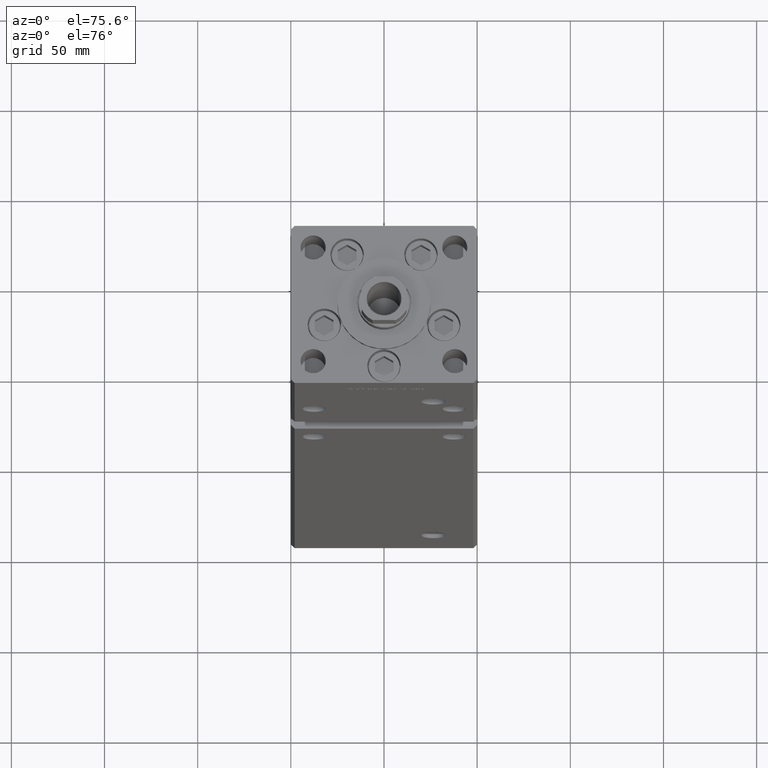
[diagram: clean part render]
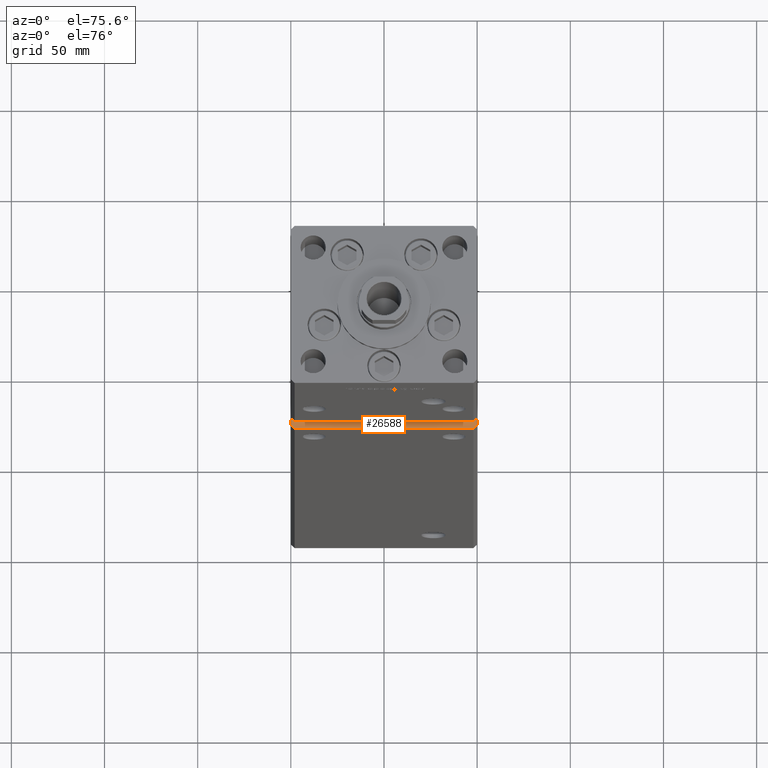
[diagram: same view with one face highlighted and labeled with its STEP entity id]
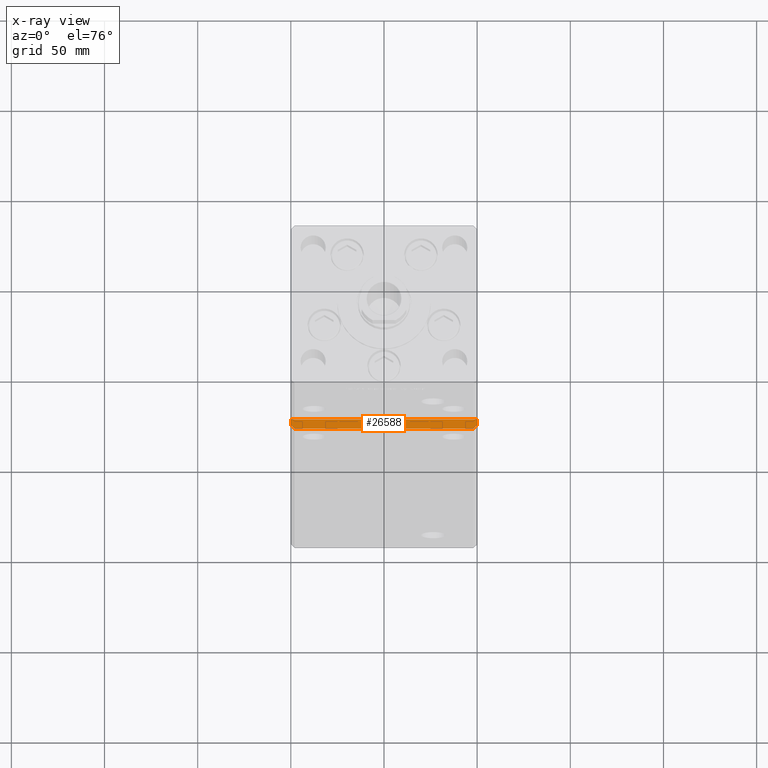
[diagram: x-ray of the same camera — body ghosted, the highlighted face saturated]
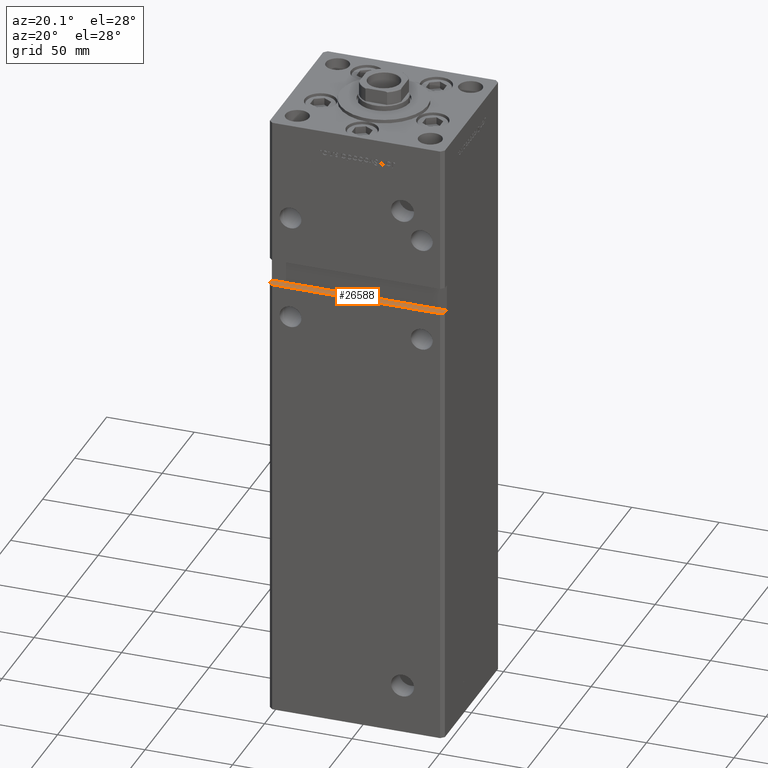
[diagram: same view with one face highlighted and labeled with its STEP entity id]
A machine part, auxiliary view. The second image highlights one B-rep face of the part: STEP entity #26588.
The next image is the same camera in x-ray: the body ghosted, the highlighted face saturated — about 0% of this face is hidden behind the body in this view.
A second angle (auxiliary view) of the same face is appended — the face is thin or edge-on in the first view.
In plain terms, the highlighted planar face has unit normal (0, 0, -1).
Its self-contained STEP definition (entity closure, byte-faithful):
#1787 = VERTEX_POINT ( 'NONE', #18893 ) ;
#1928 = PLANE ( 'NONE',  #9101 ) ;
#2064 = VECTOR ( 'NONE', #29372, 1000.000000000000000 ) ;
#3304 = VERTEX_POINT ( 'NONE', #7158 ) ;
#3307 = DIRECTION ( 'NONE',  ( 0.7071067811865474617, 0.7071067811865474617, 0.000000000000000000 ) ) ;
#3412 = CARTESIAN_POINT ( 'NONE',  ( 49.99999999999998579, -38.49999999999999289, 239.0000000000000000 ) ) ;
#3639 = EDGE_LOOP ( 'NONE', ( #10403, #37289, #52827, #15209, #13022, #16067 ) ) ;
#4767 = VERTEX_POINT ( 'NONE', #3412 ) ;
#6840 = DIRECTION ( 'NONE',  ( -0.7071067811865474617, 0.7071067811865474617, 0.000000000000000000 ) ) ;
#7158 = CARTESIAN_POINT ( 'NONE',  ( 49.99999999999998579, -41.49999999999999289, 239.0000000000000000 ) ) ;
#7895 = LINE ( 'NONE', #24299, #23718 ) ;
#8907 = LINE ( 'NONE', #34153, #48264 ) ;
#9101 = AXIS2_PLACEMENT_3D ( 'NONE', #43566, #31229, #10540 ) ;
#10382 = EDGE_CURVE ( 'NONE', #4767, #3304, #49875, .T. ) ;
#10403 = ORIENTED_EDGE ( 'NONE', *, *, #36490, .T. ) ;
#10540 = DIRECTION ( 'NONE',  ( -1.000000000000000000, 0.000000000000000000, -0.000000000000000000 ) ) ;
#11912 = CARTESIAN_POINT ( 'NONE',  ( 49.99999999999998579, -41.49999999999999289, 239.0000000000000000 ) ) ;
#12961 = CARTESIAN_POINT ( 'NONE',  ( -49.99999999999998579, -38.50000000000000000, 239.0000000000000000 ) ) ;
#13022 = ORIENTED_EDGE ( 'NONE', *, *, #21938, .T. ) ;
#14921 = LINE ( 'NONE', #19490, #47446 ) ;
#15209 = ORIENTED_EDGE ( 'NONE', *, *, #49684, .F. ) ;
#16067 = ORIENTED_EDGE ( 'NONE', *, *, #41146, .F. ) ;
#18893 = CARTESIAN_POINT ( 'NONE',  ( -47.99999999999998579, -43.50000000000000000, 239.0000000000000000 ) ) ;
#19490 = CARTESIAN_POINT ( 'NONE',  ( -49.99999999999998579, -41.49999999999999289, 239.0000000000000000 ) ) ;
#20262 = DIRECTION ( 'NONE',  ( 1.000000000000000000, 0.000000000000000000, 0.000000000000000000 ) ) ;
#21938 = EDGE_CURVE ( 'NONE', #48196, #51073, #42242, .T. ) ;
#23718 = VECTOR ( 'NONE', #20262, 1000.000000000000000 ) ;
#23785 = CARTESIAN_POINT ( 'NONE',  ( 47.99999999999998579, -43.50000000000000000, 239.0000000000000000 ) ) ;
#24299 = CARTESIAN_POINT ( 'NONE',  ( -49.99999999999998579, -38.50000000000000000, 239.0000000000000000 ) ) ;
#25026 = VECTOR ( 'NONE', #45838, 1000.000000000000000 ) ;
#25662 = FACE_OUTER_BOUND ( 'NONE', #3639, .T. ) ;
#26588 = ADVANCED_FACE ( 'NONE', ( #25662 ), #1928, .F. ) ;
#28780 = EDGE_CURVE ( 'NONE', #41371, #3304, #32336, .T. ) ;
#29372 = DIRECTION ( 'NONE',  ( -0.000000000000000000, -1.000000000000000000, -0.000000000000000000 ) ) ;
#29458 = CARTESIAN_POINT ( 'NONE',  ( 49.99999999999998579, -38.50000000000000000, 239.0000000000000000 ) ) ;
#31229 = DIRECTION ( 'NONE',  ( 0.000000000000000000, 0.000000000000000000, -1.000000000000000000 ) ) ;
#32336 = LINE ( 'NONE', #11912, #53052 ) ;
#33352 = DIRECTION ( 'NONE',  ( 1.000000000000000000, 0.000000000000000000, 0.000000000000000000 ) ) ;
#34153 = CARTESIAN_POINT ( 'NONE',  ( -49.99999999999998579, -43.50000000000000000, 239.0000000000000000 ) ) ;
#36490 = EDGE_CURVE ( 'NONE', #1787, #41371, #8907, .T. ) ;
#37289 = ORIENTED_EDGE ( 'NONE', *, *, #28780, .T. ) ;
#37961 = CARTESIAN_POINT ( 'NONE',  ( -49.99999999999998579, -38.50000000000000000, 239.0000000000000000 ) ) ;
#41146 = EDGE_CURVE ( 'NONE', #1787, #51073, #14921, .T. ) ;
#41371 = VERTEX_POINT ( 'NONE', #23785 ) ;
#42242 = LINE ( 'NONE', #37961, #2064 ) ;
#43566 = CARTESIAN_POINT ( 'NONE',  ( -49.99999999999998579, -38.50000000000000000, 239.0000000000000000 ) ) ;
#45838 = DIRECTION ( 'NONE',  ( -0.000000000000000000, -1.000000000000000000, -0.000000000000000000 ) ) ;
#47446 = VECTOR ( 'NONE', #6840, 1000.000000000000114 ) ;
#48196 = VERTEX_POINT ( 'NONE', #12961 ) ;
#48264 = VECTOR ( 'NONE', #33352, 1000.000000000000000 ) ;
#49680 = CARTESIAN_POINT ( 'NONE',  ( -49.99999999999998579, -41.49999999999999289, 239.0000000000000000 ) ) ;
#49684 = EDGE_CURVE ( 'NONE', #48196, #4767, #7895, .T. ) ;
#49875 = LINE ( 'NONE', #29458, #25026 ) ;
#51073 = VERTEX_POINT ( 'NONE', #49680 ) ;
#52827 = ORIENTED_EDGE ( 'NONE', *, *, #10382, .F. ) ;
#53052 = VECTOR ( 'NONE', #3307, 1000.000000000000114 ) ;